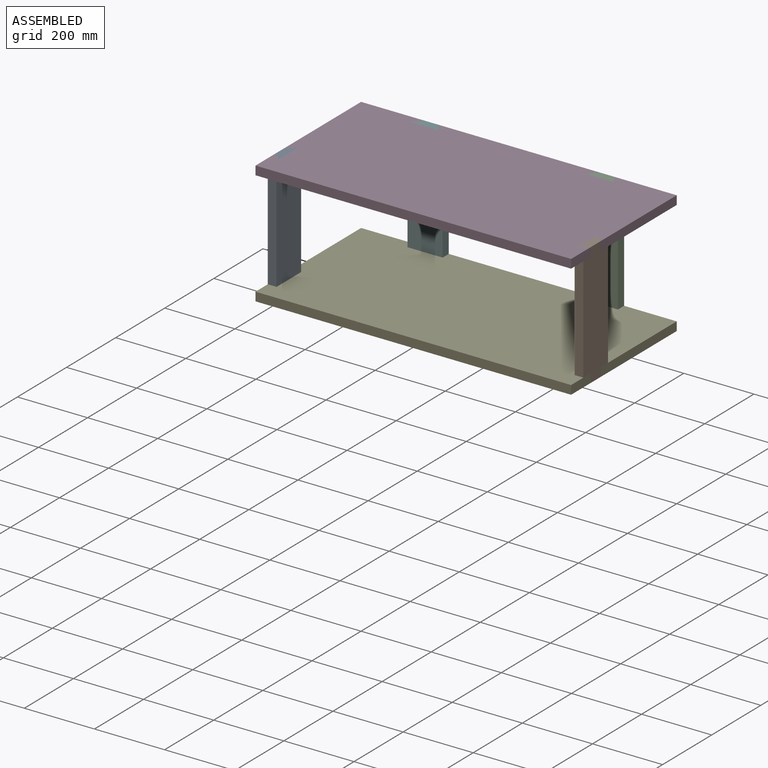
[diagram: assembled view]
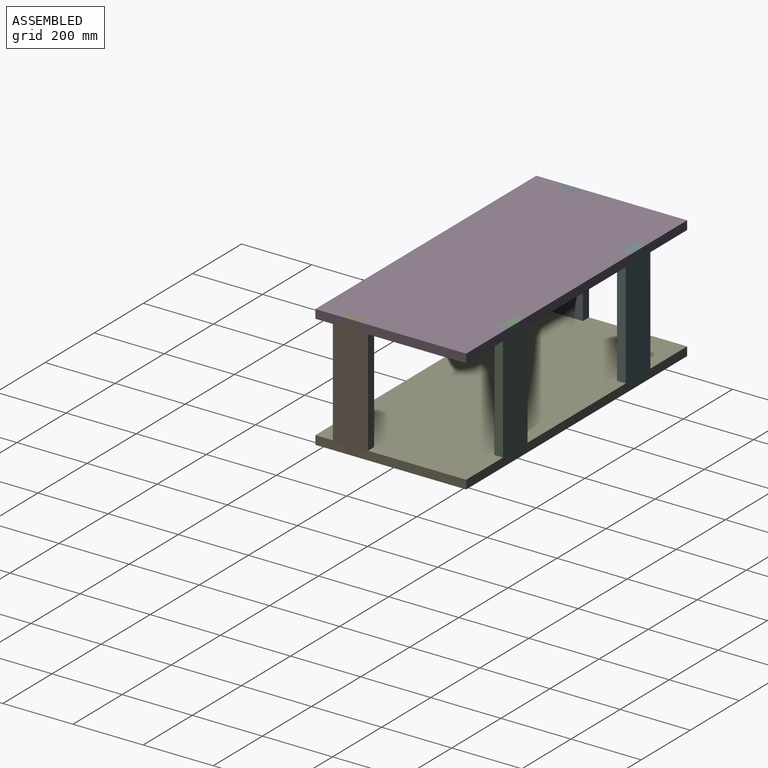
[diagram: assembled view, second angle]
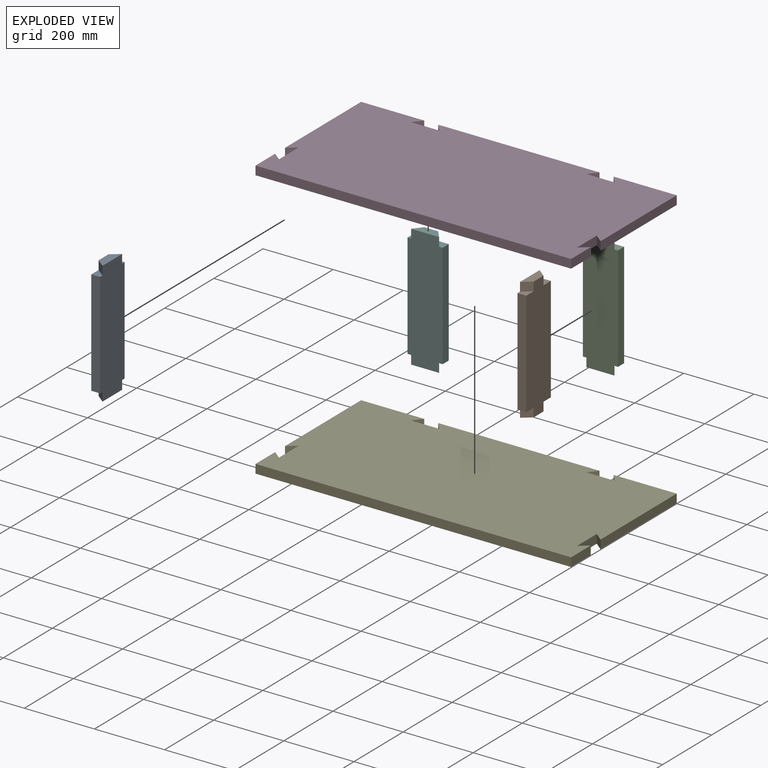
[diagram: exploded view]
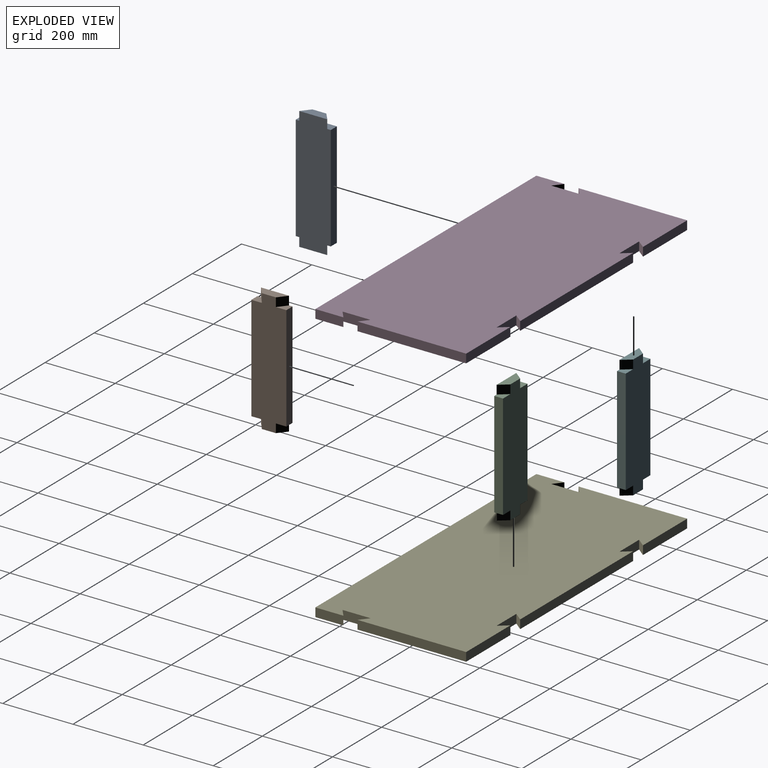
[diagram: exploded view, second angle]
ASSEMBLY  parts=6 mates=5
PART A: 14 faces, bbox 100x25x350 mm
  f0: plane 30x25mm, normal (0,0,-1), area 500mm2, adj f2,f4,f5,f7
  f1: plane 30x25mm, normal (0,0,-1), area 500mm2, adj f2,f3,f4,f6
  f2: plane 350x100mm, normal (0,1,0), area 34000mm2, adj f0,f1,f3,f5,f6,f7,f8,f9
  f3: plane 300x25mm, normal (-1,0,0), area 7500mm2, adj f1,f2,f4,f10
  f4: plane 350x100mm, normal (0,-1,0), area 32000mm2, adj f0,f1,f3,f5,f6,f7,f8,f9
  f5: plane 300x25mm, normal (1,0,0), area 7500mm2, adj f0,f2,f4,f9
  f6: plane 25x25mm, normal (-0.78,-0.62,0), area 800.4mm2, adj f1,f2,f4,f8
  f7: plane 25x25mm, normal (0.78,-0.62,0), area 800.4mm2, adj f0,f2,f4,f8
  f8: plane 80x25mm, normal (0,0,-1), area 1500mm2, adj f2,f4,f6,f7
  f9: plane 30x25mm, normal (0,0,1), area 500mm2, adj f2,f4,f5,f12
  f10: plane 30x25mm, normal (0,0,1), area 500mm2, adj f2,f3,f4,f11
  f11: plane 25x25mm, normal (-0.78,-0.62,0), area 800.4mm2, adj f2,f4,f10,f13
  f12: plane 25x25mm, normal (0.78,-0.62,0), area 800.4mm2, adj f2,f4,f9,f13
  f13: plane 80x25mm, normal (0,0,1), area 1500mm2, adj f2,f4,f11,f12
PART B: same geometry as A
PART C: same geometry as A
PART D: 22 faces, bbox 900x430x25 mm
  f0: plane 460x25mm, normal (0,1,0), area 11500mm2, adj f4,f5,f10,f21
  f1: plane 180x25mm, normal (0,1,0), area 4500mm2, adj f4,f5,f9,f12
  f2: plane 80x25mm, normal (-1,0,0), area 2000mm2, adj f4,f5,f8,f13
  f3: plane 80x25mm, normal (1,0,0), area 2000mm2, adj f4,f5,f8,f16
  f4: plane 900x430mm, normal (0,0,1), area 381000mm2, adj f0,f1,f2,f3,f6,f7,f8,f9
  f5: plane 900x430mm, normal (0,0,-1), area 381000mm2, adj f0,f1,f2,f3,f6,f7,f8,f9
  f6: plane 180x25mm, normal (0,1,0), area 4500mm2, adj f4,f5,f7,f19
  f7: plane 310x25mm, normal (-1,0,0), area 7750mm2, adj f4,f5,f6,f15
  f8: plane 900x25mm, normal (0,-1,0), area 22500mm2, adj f2,f3,f4,f5
  f9: plane 310x25mm, normal (1,0,0), area 7750mm2, adj f1,f4,f5,f17
  f10: plane 25x25mm, normal (0.78,-0.62,0), area 800.4mm2, adj f0,f4,f5,f11
  f11: plane 80x25mm, normal (0,1,0), area 2000mm2, adj f4,f5,f10,f12
  f12: plane 25x25mm, normal (-0.78,-0.62,0), area 800.4mm2, adj f1,f4,f5,f11
  f13: plane 25x25mm, normal (0.62,0.78,0), area 800.4mm2, adj f2,f4,f5,f14
  f14: plane 80x25mm, normal (-1,0,0), area 2000mm2, adj f4,f5,f13,f15
  f15: plane 25x25mm, normal (0.62,-0.78,0), area 800.4mm2, adj f4,f5,f7,f14
  f16: plane 25x25mm, normal (-0.62,0.78,0), area 800.4mm2, adj f3,f4,f5,f18
  f17: plane 25x25mm, normal (-0.62,-0.78,0), area 800.4mm2, adj f4,f5,f9,f18
  f18: plane 80x25mm, normal (1,0,0), area 2000mm2, adj f4,f5,f16,f17
  f19: plane 25x25mm, normal (0.78,-0.62,0), area 800.4mm2, adj f4,f5,f6,f20
  f20: plane 80x25mm, normal (0,1,0), area 2000mm2, adj f4,f5,f19,f21
  f21: plane 25x25mm, normal (-0.78,-0.62,0), area 800.4mm2, adj f0,f4,f5,f20
PART E: same geometry as D
PART F: same geometry as A
PLACE A rot(axis=(0,0,-1),90deg) t=(-647.51,-158.88,-173.44)mm
PLACE B rot(axis=(0,0,1),90deg) t=(184.07,-153.28,-173.44)mm
PLACE C rot(axis=(0,0,1),180deg) t=(15.48,139.71,-173.44)mm
PLACE D t=(-226.01,9.88,126.56)mm
PLACE E t=(-226.01,9.88,-198.44)mm
PLACE F rot(axis=(0,0,1),180deg) t=(-484.52,139.71,-173.44)mm
MATE fastened E.f5 <-> B.f8  axis (0,0,-1) through (193.28,-156.08,-198.44)mm
MATE fastened F.f13 <-> D.f4  axis (0,0,1) through (-481.72,148.92,151.56)mm
MATE fastened C.f13 <-> D.f4  axis (0,0,1) through (18.28,148.92,151.56)mm
MATE fastened B.f13 <-> D.f4  axis (0,0,1) through (193.28,-156.08,151.56)mm
MATE fastened A.f13 <-> D.f4  axis (0,0,1) through (-656.72,-156.08,151.56)mm
